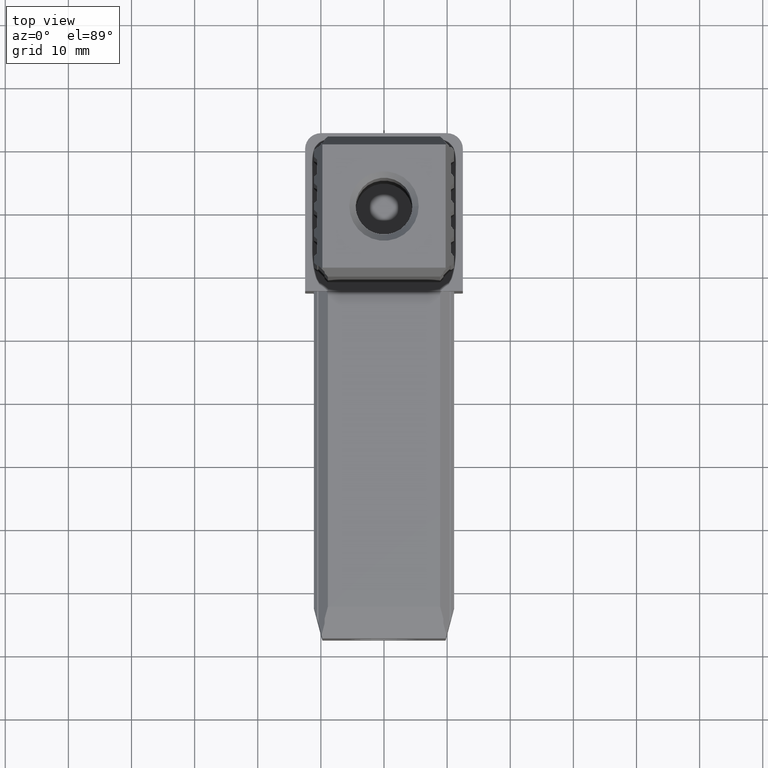
[diagram: clean part render]
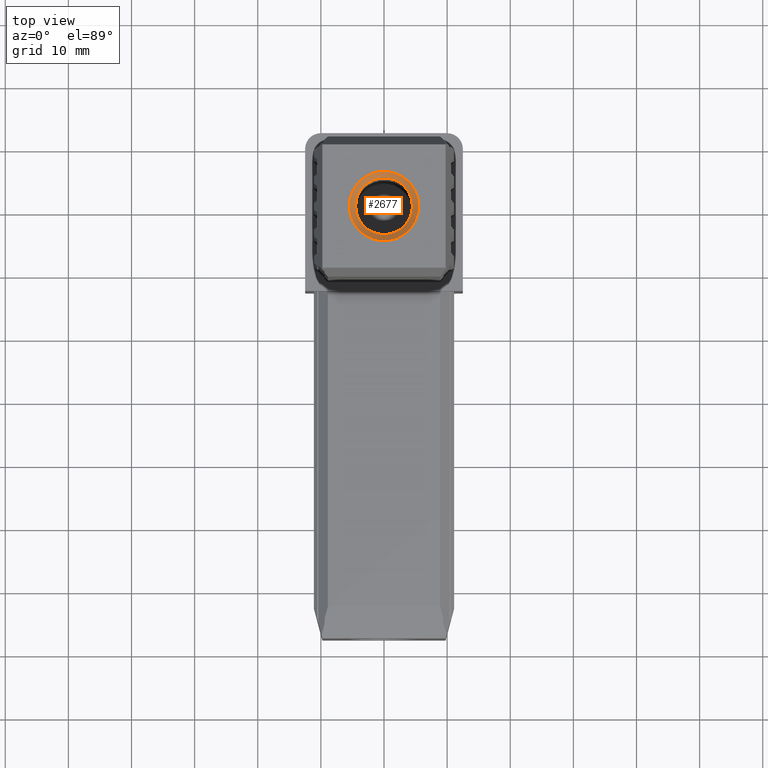
[diagram: same view with one face highlighted and labeled with its STEP entity id]
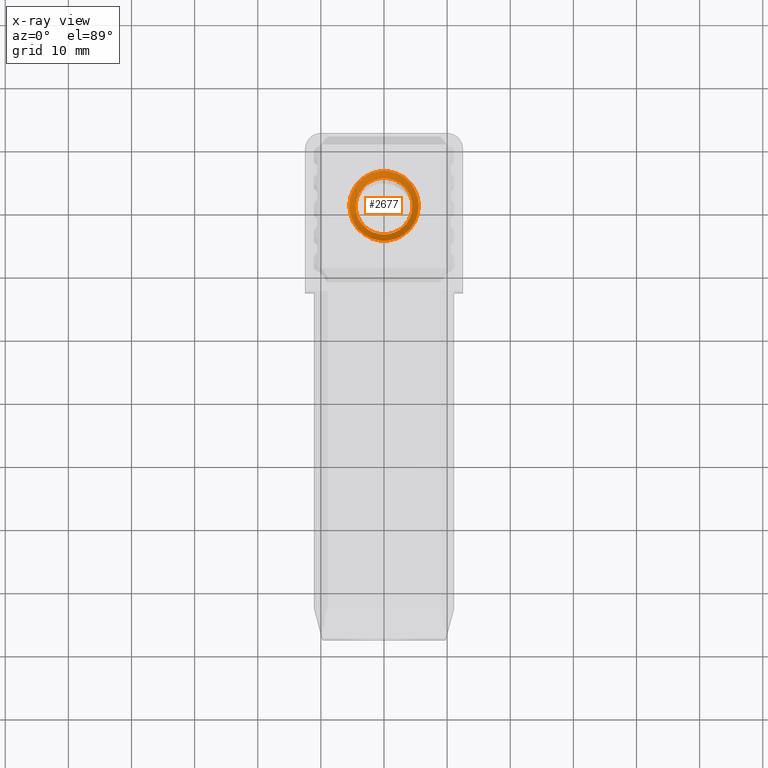
[diagram: x-ray of the same camera — body ghosted, the highlighted face saturated]
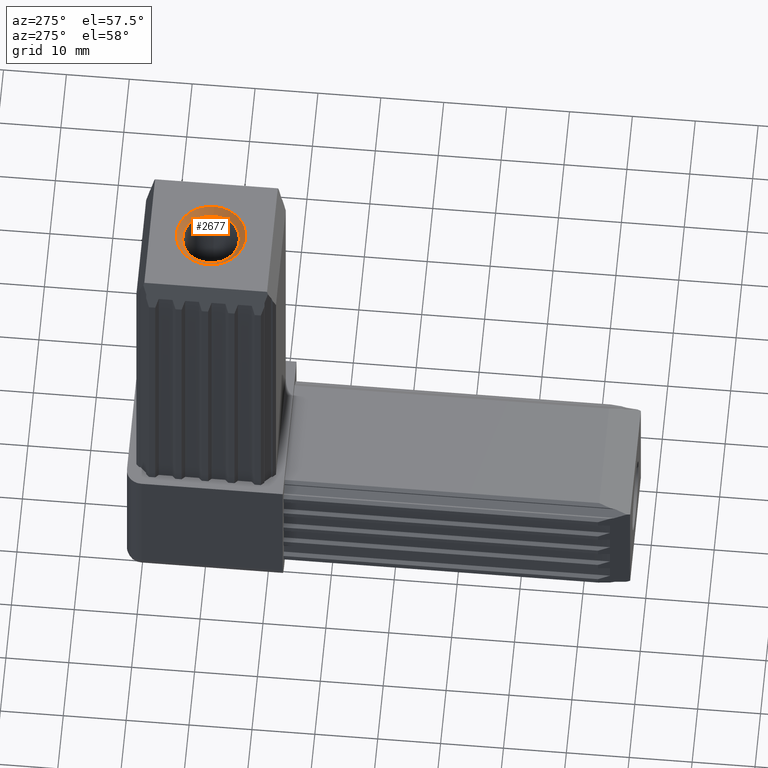
[diagram: same view with one face highlighted and labeled with its STEP entity id]
A machine part, top view. The second image highlights one B-rep face of the part: STEP entity #2677.
The next image is the same camera in x-ray: the body ghosted, the highlighted face saturated — about 0% of this face is hidden behind the body in this view.
A second angle (auxiliary view) of the same face is appended — the face is thin or edge-on in the first view.
In plain terms, the highlighted conical surface has half-angle 45 deg.
Its self-contained STEP definition (entity closure, byte-faithful):
#158=FACE_OUTER_BOUND('',#299,.T.);
#299=EDGE_LOOP('',(#1881,#1882,#1883,#1884));
#444=LINE('',#3697,#825);
#825=VECTOR('',#3001,5.);
#1206=CIRCLE('',#2839,5.5);
#1207=CIRCLE('',#2840,4.5);
#1222=VERTEX_POINT('',#3694);
#1223=VERTEX_POINT('',#3696);
#1484=EDGE_CURVE('',#1222,#1222,#1206,.T.);
#1485=EDGE_CURVE('',#1222,#1223,#444,.T.);
#1486=EDGE_CURVE('',#1223,#1223,#1207,.T.);
#1881=ORIENTED_EDGE('',*,*,#1484,.T.);
#1882=ORIENTED_EDGE('',*,*,#1485,.T.);
#1883=ORIENTED_EDGE('',*,*,#1486,.T.);
#1884=ORIENTED_EDGE('',*,*,#1485,.F.);
#2675=CONICAL_SURFACE('',#2838,5.,0.78539816339745);
#2677=ADVANCED_FACE('',(#158),#2675,.F.);
#2838=AXIS2_PLACEMENT_3D('',#3693,#2997,#2998);
#2839=AXIS2_PLACEMENT_3D('',#3695,#2999,#3000);
#2840=AXIS2_PLACEMENT_3D('',#3698,#3002,#3003);
#2997=DIRECTION('center_axis',(0.,0.,1.));
#2998=DIRECTION('ref_axis',(-1.,0.,0.));
#2999=DIRECTION('center_axis',(0.,0.,1.));
#3000=DIRECTION('ref_axis',(-1.,0.,0.));
#3001=DIRECTION('',(-0.707106781186549,-8.65956056235495E-17,-0.707106781186546));
#3002=DIRECTION('center_axis',(0.,0.,-1.));
#3003=DIRECTION('ref_axis',(-1.,0.,0.));
#3693=CARTESIAN_POINT('Origin',(0.,0.,67.));
#3694=CARTESIAN_POINT('',(5.5,6.73555739531044E-16,67.5));
#3695=CARTESIAN_POINT('Origin',(0.,0.,67.5));
#3696=CARTESIAN_POINT('',(4.5,-5.51091059616309E-16,66.5));
#3697=CARTESIAN_POINT('',(5.,6.12323399573677E-16,67.));
#3698=CARTESIAN_POINT('Origin',(0.,0.,66.5));